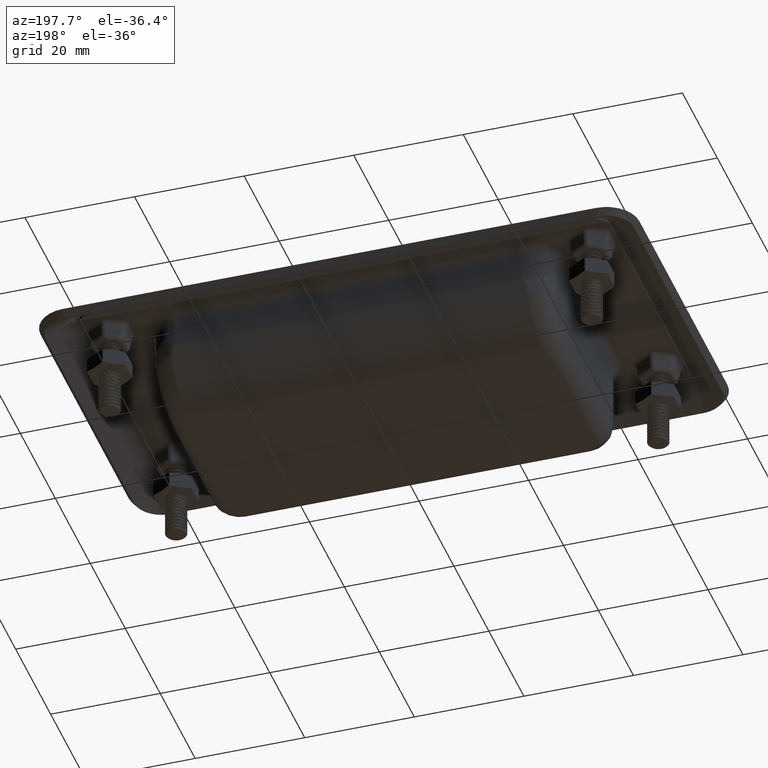
[diagram: clean part render]
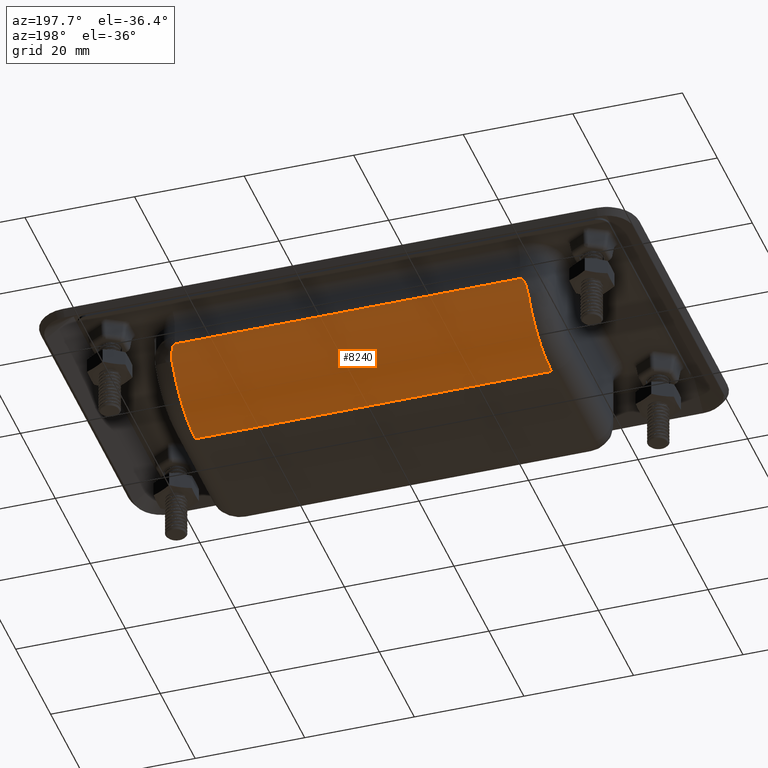
[diagram: same view with one face highlighted and labeled with its STEP entity id]
A machine part, auxiliary view. The second image highlights one B-rep face of the part: STEP entity #8240.
In plain terms, the highlighted cylindrical surface (partial cylindrical patch) has radius 15.864 mm, axis along (1, 0, 0).
Its self-contained STEP definition (entity closure, byte-faithful):
#368=CIRCLE('',#8850,15.8640186915888);
#374=CIRCLE('',#8858,15.8640186915888);
#668=CYLINDRICAL_SURFACE('',#8896,15.8640186915888);
#971=FACE_OUTER_BOUND('',#1491,.T.);
#1491=EDGE_LOOP('',(#6345,#6346,#6347,#6348,#6349,#6350));
#2070=LINE('',#14572,#2628);
#2075=LINE('',#14675,#2633);
#2628=VECTOR('',#10047,63.);
#2633=VECTOR('',#10074,65.);
#3100=B_SPLINE_CURVE_WITH_KNOTS('',3,(#14548,#14549,#14550,#14551,#14552,
#14553,#14554,#14555,#14556,#14557,#14558,#14559,#14560,#14561,#14562,#14563,
#14564,#14565,#14566),.UNSPECIFIED.,.F.,.F.,(4,3,3,3,3,3,4),(9.87219657432482E-17,
0.018312695836453,0.109876175018717,0.183126958364529,0.219752350037434,
0.238065045873887,0.25637774171034),.UNSPECIFIED.);
#3102=B_SPLINE_CURVE_WITH_KNOTS('',3,(#14630,#14631,#14632,#14633,#14634,
#14635,#14636,#14637,#14638,#14639,#14640,#14641,#14642,#14643,#14644,#14645,
#14646,#14647,#14648),.UNSPECIFIED.,.F.,.F.,(4,3,3,3,3,3,4),(2.60780464535868E-33,
0.0183104851374205,0.0366209702748409,0.0732419405496818,0.109862910824523,
0.183104851374205,0.256346791923886),.UNSPECIFIED.);
#3709=VERTEX_POINT('',#14474);
#3710=VERTEX_POINT('',#14478);
#3711=VERTEX_POINT('',#14526);
#3713=VERTEX_POINT('',#14568);
#3715=VERTEX_POINT('',#14618);
#3717=VERTEX_POINT('',#14650);
#4623=EDGE_CURVE('',#3709,#3710,#368,.T.);
#4626=EDGE_CURVE('',#3710,#3711,#3100,.T.);
#4629=EDGE_CURVE('',#3711,#3713,#2070,.T.);
#4632=EDGE_CURVE('',#3713,#3715,#3102,.T.);
#4635=EDGE_CURVE('',#3715,#3717,#374,.T.);
#4642=EDGE_CURVE('',#3717,#3709,#2075,.T.);
#6345=ORIENTED_EDGE('',*,*,#4623,.F.);
#6346=ORIENTED_EDGE('',*,*,#4642,.F.);
#6347=ORIENTED_EDGE('',*,*,#4635,.F.);
#6348=ORIENTED_EDGE('',*,*,#4632,.F.);
#6349=ORIENTED_EDGE('',*,*,#4629,.F.);
#6350=ORIENTED_EDGE('',*,*,#4626,.F.);
#8240=ADVANCED_FACE('',(#971),#668,.T.);
#8850=AXIS2_PLACEMENT_3D('',#14480,#10038,#10039);
#8858=AXIS2_PLACEMENT_3D('',#14654,#10056,#10057);
#8896=AXIS2_PLACEMENT_3D('',#14878,#10148,#10149);
#10038=DIRECTION('center_axis',(1.,0.,0.));
#10039=DIRECTION('ref_axis',(0.,0.334435986394752,-0.942418469154849));
#10047=DIRECTION('',(-1.,0.,0.));
#10056=DIRECTION('center_axis',(-1.,0.,0.));
#10057=DIRECTION('ref_axis',(0.,0.334435986394752,-0.942418469154849));
#10074=DIRECTION('',(1.,0.,0.));
#10148=DIRECTION('center_axis',(1.,0.,0.));
#10149=DIRECTION('ref_axis',(0.,3.7470027081099E-16,-1.));
#14474=CARTESIAN_POINT('',(32.5,6.,-61.2));
#14478=CARTESIAN_POINT('',(32.5,19.3715388554098,-53.8723176235609));
#14480=CARTESIAN_POINT('Origin',(32.5,5.99999999999999,-45.3359813084112));
#14526=CARTESIAN_POINT('',(31.5,20.7086927409508,-51.2791662205084));
#14548=CARTESIAN_POINT('Ctrl Pts',(32.5,19.3715388554098,-53.8723176235609));
#14549=CARTESIAN_POINT('Ctrl Pts',(32.5,19.4154597039746,-53.8035188659365));
#14550=CARTESIAN_POINT('Ctrl Pts',(32.4983200286629,19.4588891308564,-53.734317003443));
#14551=CARTESIAN_POINT('Ctrl Pts',(32.495175368361,19.5017033535506,-53.6649125483602));
#14552=CARTESIAN_POINT('Ctrl Pts',(32.4794520668518,19.715774467022,-53.3178902729461));
#14553=CARTESIAN_POINT('Ctrl Pts',(32.4271115412236,19.914302554052,-52.9657042722377));
#14554=CARTESIAN_POINT('Ctrl Pts',(32.3411777253908,20.0940796497144,-52.6177398786047));
#14555=CARTESIAN_POINT('Ctrl Pts',(32.2724306727245,20.2379013262442,-52.3393683636982));
#14556=CARTESIAN_POINT('Ctrl Pts',(32.1821839143271,20.3695496767075,-52.0636129062798));
#14557=CARTESIAN_POINT('Ctrl Pts',(32.0548067705577,20.4834270513803,-51.8088037140101));
#14558=CARTESIAN_POINT('Ctrl Pts',(31.991118198673,20.5403657387167,-51.6813991178753));
#14559=CARTESIAN_POINT('Ctrl Pts',(31.9181470304452,20.5928199368029,-51.5592111426071));
#14560=CARTESIAN_POINT('Ctrl Pts',(31.8272285860796,20.6349112218594,-51.4586002395038));
#14561=CARTESIAN_POINT('Ctrl Pts',(31.7817693638968,20.6559568643876,-51.4082947879521));
#14562=CARTESIAN_POINT('Ctrl Pts',(31.7318233226796,20.6744224387796,-51.3633879720837));
#14563=CARTESIAN_POINT('Ctrl Pts',(31.676641561569,20.6876002529525,-51.3311033135541));
#14564=CARTESIAN_POINT('Ctrl Pts',(31.6214598004585,20.7007780671254,-51.2988186550245));
#14565=CARTESIAN_POINT('Ctrl Pts',(31.5610423194548,20.7086927409508,-51.2791662205084));
#14566=CARTESIAN_POINT('Ctrl Pts',(31.5,20.7086927409508,-51.2791662205084));
#14568=CARTESIAN_POINT('',(-31.5,20.7086927409508,-51.2791662205084));
#14572=CARTESIAN_POINT('',(0.,20.7086927409508,-51.2791662205084));
#14618=CARTESIAN_POINT('',(-32.5,19.3715388554098,-53.8723176235609));
#14630=CARTESIAN_POINT('Ctrl Pts',(-31.5,20.7086927409508,-51.2791662205084));
#14631=CARTESIAN_POINT('Ctrl Pts',(-31.5610349504581,20.7086927409508,-51.2791662205084));
#14632=CARTESIAN_POINT('Ctrl Pts',(-31.6215101528484,20.7007893621131,-51.2987909079661));
#14633=CARTESIAN_POINT('Ctrl Pts',(-31.676676020907,20.6876051344846,-51.3310913541518));
#14634=CARTESIAN_POINT('Ctrl Pts',(-31.7318418889656,20.6744209068561,-51.3633918003375));
#14635=CARTESIAN_POINT('Ctrl Pts',(-31.7816984226926,20.6559307602677,-51.4083577153063));
#14636=CARTESIAN_POINT('Ctrl Pts',(-31.8271566504363,20.6348882123694,-51.4586552388546));
#14637=CARTESIAN_POINT('Ctrl Pts',(-31.9180731059238,20.5928031165728,-51.5592502859512));
#14638=CARTESIAN_POINT('Ctrl Pts',(-31.9913963374785,20.5404724923647,-51.6811577707736));
#14639=CARTESIAN_POINT('Ctrl Pts',(-32.0549492779499,20.483473874984,-51.8086989416573));
#14640=CARTESIAN_POINT('Ctrl Pts',(-32.1185022184212,20.4264752576033,-51.936240112541));
#14641=CARTESIAN_POINT('Ctrl Pts',(-32.1722848678093,20.3648910187251,-52.0694514630436));
#14642=CARTESIAN_POINT('Ctrl Pts',(-32.2194107122533,20.2997610970633,-52.2050366738887));
#14643=CARTESIAN_POINT('Ctrl Pts',(-32.3136624011414,20.1695012537395,-52.4762070955789));
#14644=CARTESIAN_POINT('Ctrl Pts',(-32.3812868702533,20.0250004802179,-52.7568428776338));
#14645=CARTESIAN_POINT('Ctrl Pts',(-32.427871269968,19.8694040027712,-53.0370670536158));
#14646=CARTESIAN_POINT('Ctrl Pts',(-32.4744556696827,19.7138075253244,-53.3172912295978));
#14647=CARTESIAN_POINT('Ctrl Pts',(-32.5,19.5472010412619,-53.5971558144627));
#14648=CARTESIAN_POINT('Ctrl Pts',(-32.5,19.3715388554098,-53.8723176235609));
#14650=CARTESIAN_POINT('',(-32.5,6.,-61.2));
#14654=CARTESIAN_POINT('Origin',(-32.5,5.99999999999999,-45.3359813084112));
#14675=CARTESIAN_POINT('',(0.,6.,-61.2));
#14878=CARTESIAN_POINT('Origin',(0.,5.99999999999999,-45.3359813084112));